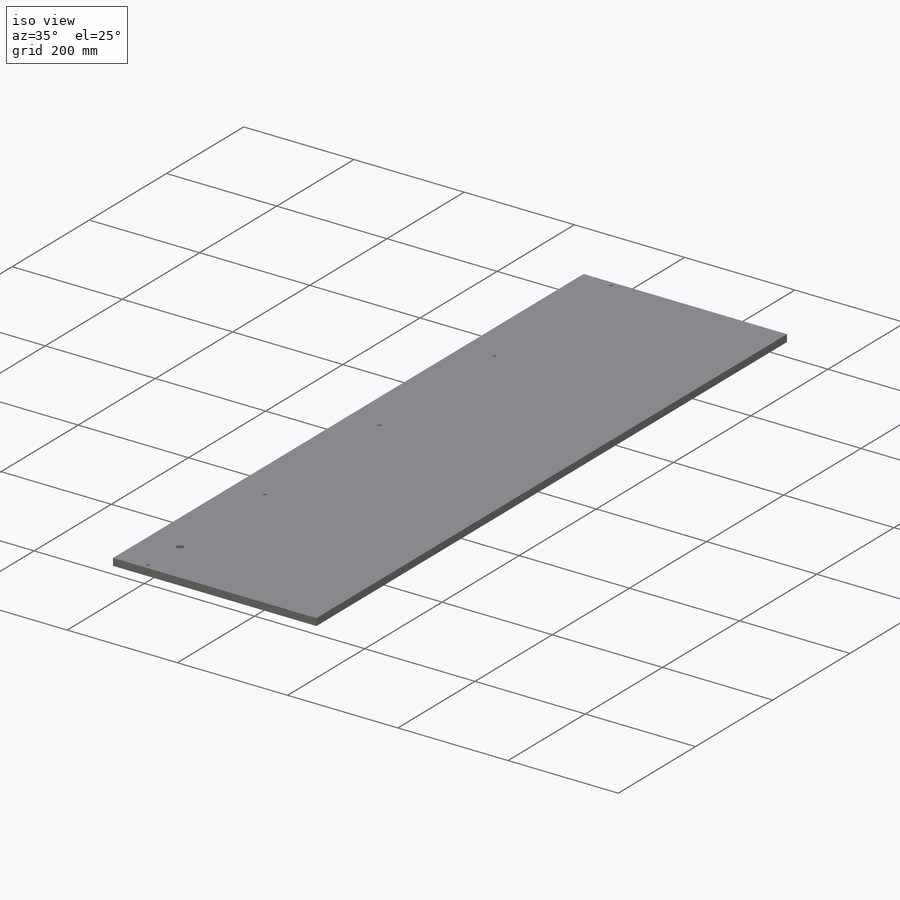
[diagram: iso view]
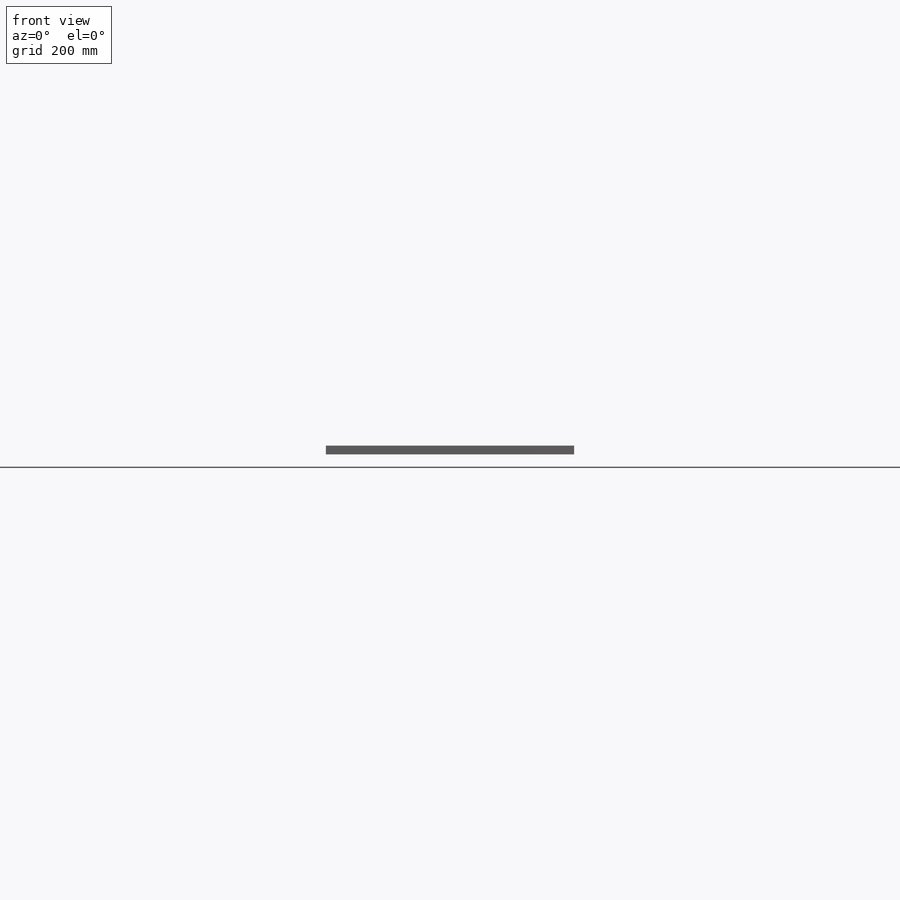
[diagram: front view]
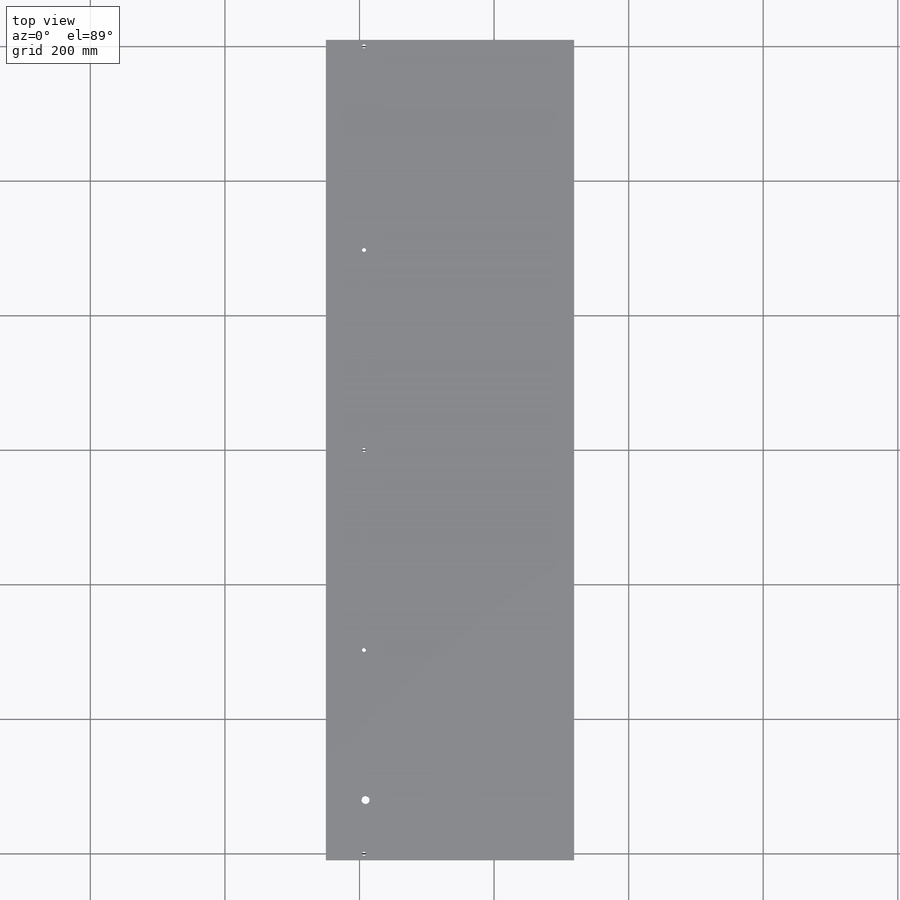
[diagram: top view]
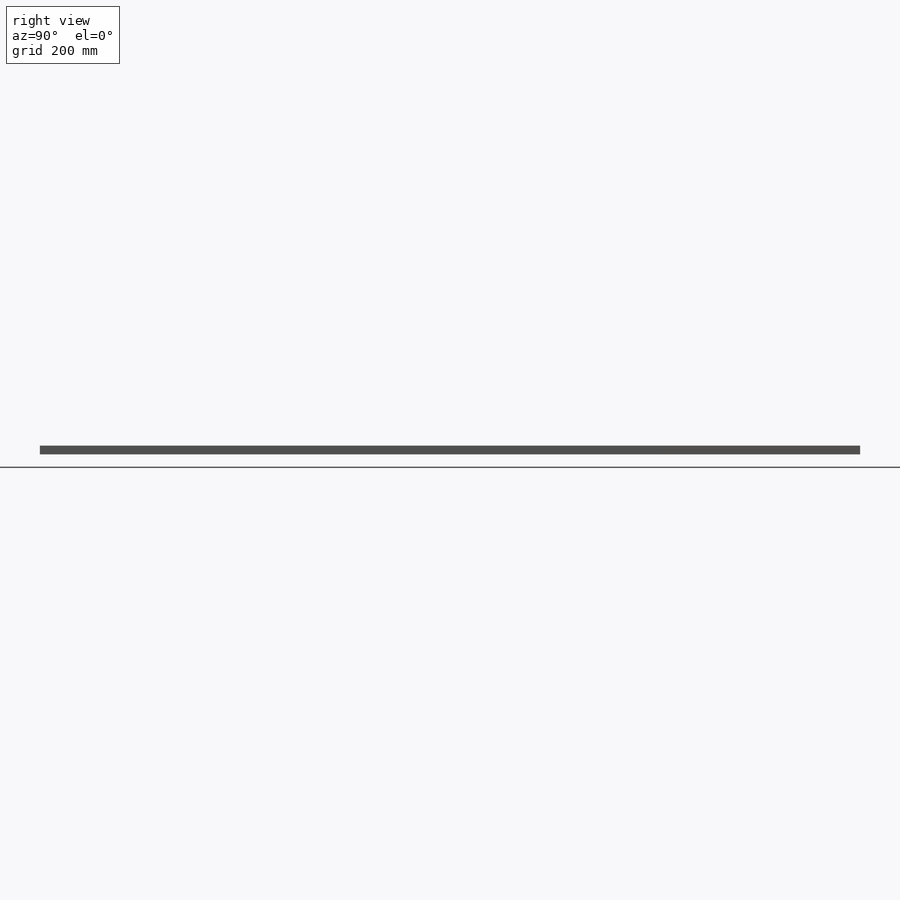
[diagram: right view]
SOLIDWORKS PART (.sldprt)
format: sldprt  version: not decoded by parser v0  size: 355,840 bytes
history: native  units: mm
features: sketch x5, extrude x2, cut_extrude x2, material x1 (+11 scaffold rows collapsed)
feature tree (21):
  scaffold x11  (default folders/planes/origin — collapsed)
  material  "Material <not specified>"
  sketch  "Sketch1"  dims[D1=1219.2mm D2=100.0mm]
  extrude  "Boss-Extrude1"  Depth=13mm
  sketch  "Sketch3"  dims[D1=0.5mm]
  sketch  "Sketch4"  dims[c1.D1=6.0mm c1.D4=6.0mm c1.D3=6.0mm c1.D5=6.0mm c1.D6=6.0mm c1.D7=6.0mm c1.D8=6.0mm c1.D9=6.0mm c1.D10=6.0mm c1.D11=6.0mm c2.D8=6.0mm c2.D2=9.5mm c2.D4=9.5mm c2.D3=~43.257031mm c2.D6=297.3mm c2.D7=9.2mm c3.D8=9.5mm c3.D9=9.5mm c3.D10=297.3mm]
  cut_extrude  "Cut-Extrude1"  Depth=20mm
  sketch  "Sketch5"  dims[D1=381.0mm D2=269.0mm]
  extrude  "Boss-Extrude2"  [1 undecoded]
  sketch  "Sketch6"  dims[c1.D1=12.0mm c1.D2=12.0mm c1.D3=12.0mm c2.D2=59.0mm c2.D3=89.325mm c2.D1=40.5mm c3.D2=12.1mm c3.D3=65.0mm c3.D4=69.38mm c3.D6=1041.25mm c3.D5=2.0]
  cut_extrude  "Cut-Extrude2"  Depth=20mm
decode coverage: 8 of 9 modeling features carry decoded parameters
note: ~ marks probable driven/reference dimensions
note: 1 parameter value undecoded
note: suppression state not decoded; provenance and decode notes live in map.json
